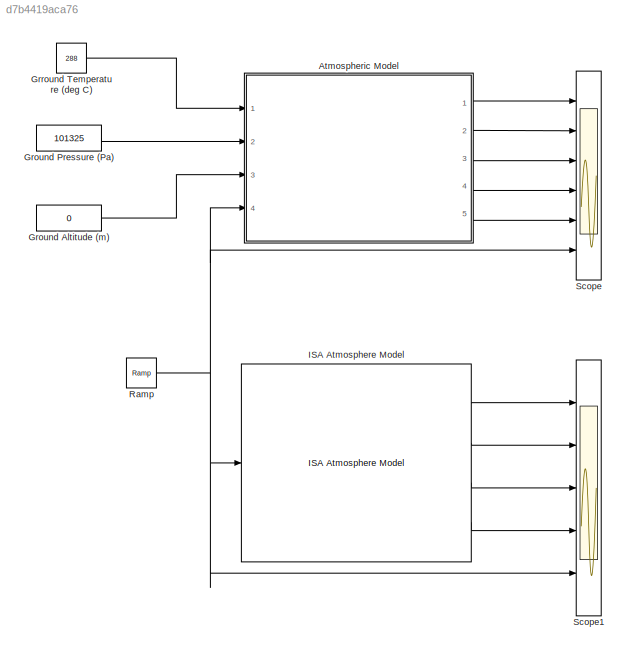
MODEL slx_d7b4419aca76
KIND model
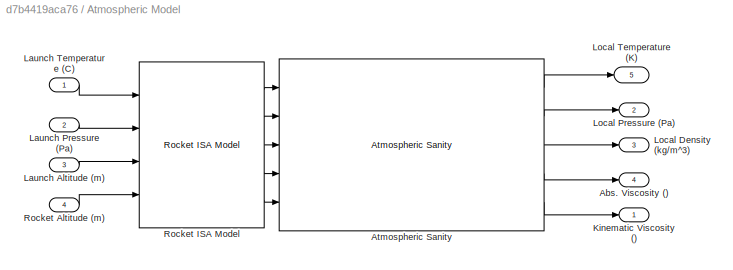
BLOCK [SubSystem] Atmospheric Model
  Ports = [4, 5]
  RequestExecContextInheritance = off
BLOCK [Outport] Atmospheric Model/Abs. Viscosity ()
  IconDisplay = Port number
  Port = 4
BLOCK [Reference] Atmospheric Model/Atmospheric Sanity  REF=rocket_isa_model_library/Atmospheric Sanity  (lib defined in slx_4b2a796e4351)
  Ports = [5, 5]
  SourceBlock = rocket_isa_model_library/Atmospheric Sanity
  SourceType = SubSystem
BLOCK [Outport] Atmospheric Model/Kinematic Viscosity ()
  IconDisplay = Port number
BLOCK [Inport] Atmospheric Model/Launch Altitude (m)
  IconDisplay = Port number
  Port = 3
BLOCK [Inport] Atmospheric Model/Launch Pressure (Pa)
  IconDisplay = Port number
  Port = 2
BLOCK [Inport] Atmospheric Model/Launch Temperature (C)
  IconDisplay = Port number
BLOCK [Outport] Atmospheric Model/Local Density (kg//m^3)
  IconDisplay = Port number
  Port = 3
BLOCK [Outport] Atmospheric Model/Local Pressure (Pa)
  IconDisplay = Port number
  Port = 2
BLOCK [Outport] Atmospheric Model/Local Temperature (K)
  IconDisplay = Port number
  Port = 5
BLOCK [Inport] Atmospheric Model/Rocket Altitude (m)
  IconDisplay = Port number
  Port = 4
BLOCK [Reference] Atmospheric Model/Rocket ISA Model  REF=rocket_isa_model_library/Rocket ISA Model  (lib defined in slx_4b2a796e4351)
  Ports = [4, 5]
  SourceBlock = rocket_isa_model_library/Rocket ISA Model
  SourceType = SubSystem
BLOCK [Constant] Ground Altitude (m)
  Value = 0
BLOCK [Constant] Ground Pressure (Pa)
  Value = 101325
BLOCK [Constant] Grround Temperature (deg C)
  Value = 288
BLOCK [Reference] ISA Atmosphere Model  REF=aerolibatmos2/ISA Atmosphere Model
  L = 0.0065
  P0 = 101325
  Ports = [1, 4]
  R = 287.0531
  SourceBlock = aerolibatmos2/ISA Atmosphere Model
  SourceType = International Standard Atmosphere Model
  T0 = 288.15
  custom = on
  g = 9.80665
  gamma = 1.4
  h0 = 0
  h_strat = 20000
  h_trop = 11000
  rho0 = 1.225
BLOCK [Reference] Ramp  REF=simulink/Sources/Ramp
  Ports = [0, 1]
  SourceBlock = simulink/Sources/Ramp
  SourceType = Ramp
  VectorParams1D = on
  X0 = 0
  slope = 1
  start = 0
BLOCK [Scope] Scope
  DataFormat = StructureWithTime
  Floating = off
  NumInputPorts = 6
  Ports = [6]
  SampleTime = 0
  ShowLegends = off
  YMax = -1.51669e-08~106391~24.71~-3.56929e-07~15.75~1
  YMin = -1.67635e-08~96258.8~22.3566~-3.94501e-07~14.25~-1
BLOCK [Scope] Scope1
  DataFormat = StructureWithTime
  Floating = off
  NumInputPorts = 5
  Ports = [5]
  SampleTime = 0
  SaveName = ScopeData1
  ShowLegends = off
  YMax = 5~5~5~5~5
  YMin = -5~-5~-5~-5~-5
LINE Atmospheric Model/Atmospheric Sanity:1 -> Atmospheric Model/Local Temperature (K):1
LINE Atmospheric Model/Atmospheric Sanity:2 -> Atmospheric Model/Local Pressure (Pa):1
LINE Atmospheric Model/Atmospheric Sanity:3 -> Atmospheric Model/Local Density (kg//m^3):1
LINE Atmospheric Model/Atmospheric Sanity:4 -> Atmospheric Model/Abs. Viscosity ():1
LINE Atmospheric Model/Atmospheric Sanity:5 -> Atmospheric Model/Kinematic Viscosity ():1
LINE Atmospheric Model/Launch Altitude (m):1 -> Atmospheric Model/Rocket ISA Model:3
LINE Atmospheric Model/Launch Pressure (Pa):1 -> Atmospheric Model/Rocket ISA Model:2
LINE Atmospheric Model/Launch Temperature (C):1 -> Atmospheric Model/Rocket ISA Model:1
LINE Atmospheric Model/Rocket Altitude (m):1 -> Atmospheric Model/Rocket ISA Model:4
LINE Atmospheric Model/Rocket ISA Model:1 -> Atmospheric Model/Atmospheric Sanity:1
LINE Atmospheric Model/Rocket ISA Model:2 -> Atmospheric Model/Atmospheric Sanity:2
LINE Atmospheric Model/Rocket ISA Model:3 -> Atmospheric Model/Atmospheric Sanity:3
LINE Atmospheric Model/Rocket ISA Model:4 -> Atmospheric Model/Atmospheric Sanity:4
LINE Atmospheric Model/Rocket ISA Model:5 -> Atmospheric Model/Atmospheric Sanity:5
LINE Atmospheric Model:1 -> Scope:1
LINE Atmospheric Model:2 -> Scope:2
LINE Atmospheric Model:3 -> Scope:3
LINE Atmospheric Model:4 -> Scope:4
LINE Atmospheric Model:5 -> Scope:5
LINE Ground Altitude (m):1 -> Atmospheric Model:3
LINE Ground Pressure (Pa):1 -> Atmospheric Model:2
LINE Grround Temperature (deg C):1 -> Atmospheric Model:1
LINE ISA Atmosphere Model:1 -> Scope1:1
LINE ISA Atmosphere Model:2 -> Scope1:2
LINE ISA Atmosphere Model:3 -> Scope1:3
LINE ISA Atmosphere Model:4 -> Scope1:4
NET Ramp:1 -> Atmospheric Model:4, ISA Atmosphere Model:1, Scope1:5, Scope:6
note: NET lines group one-source signal fan-out (src -> all destinations, sorted); 1:1 wires keep LINE
